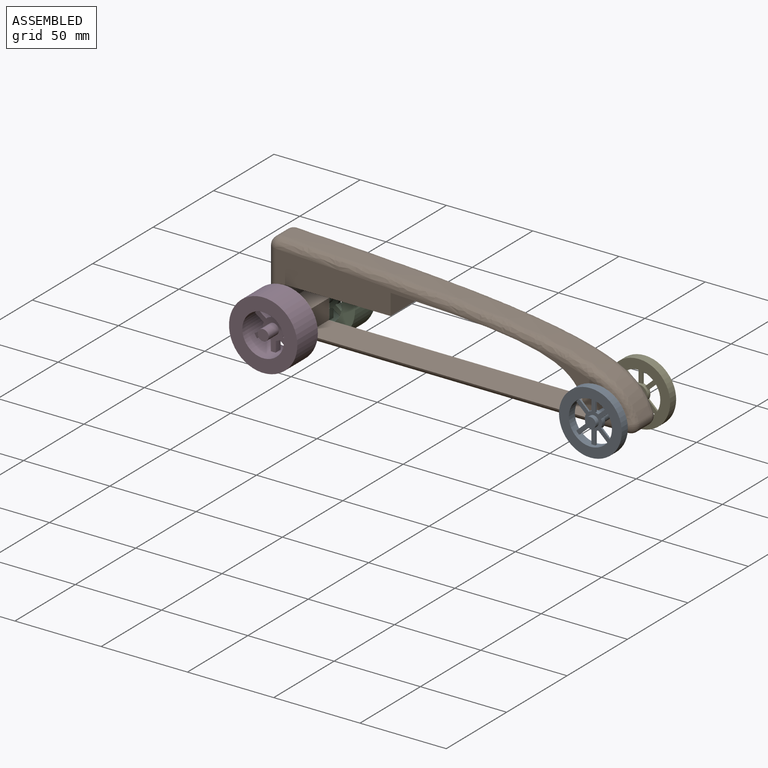
[diagram: assembled view]
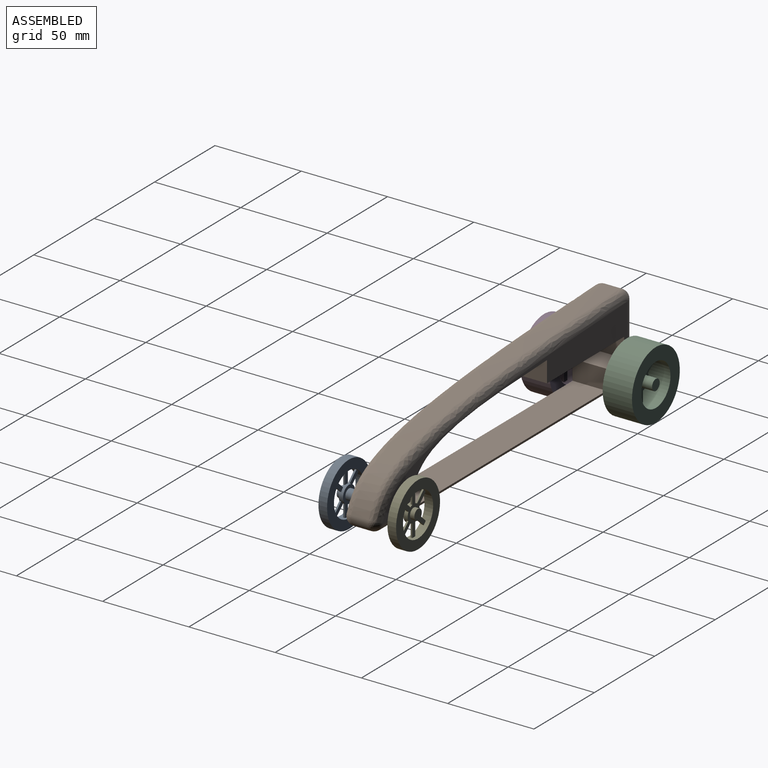
[diagram: assembled view, second angle]
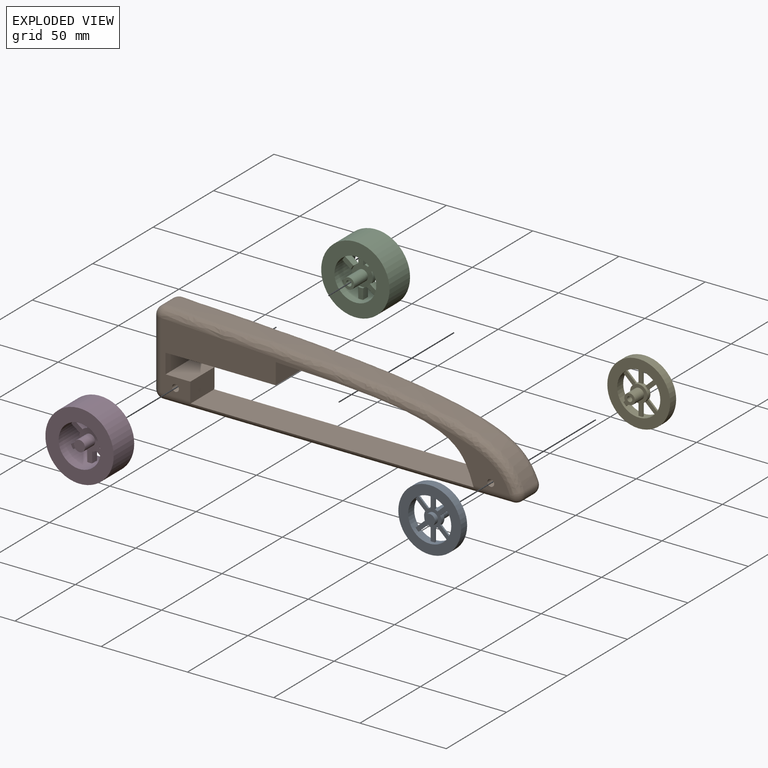
[diagram: exploded view]
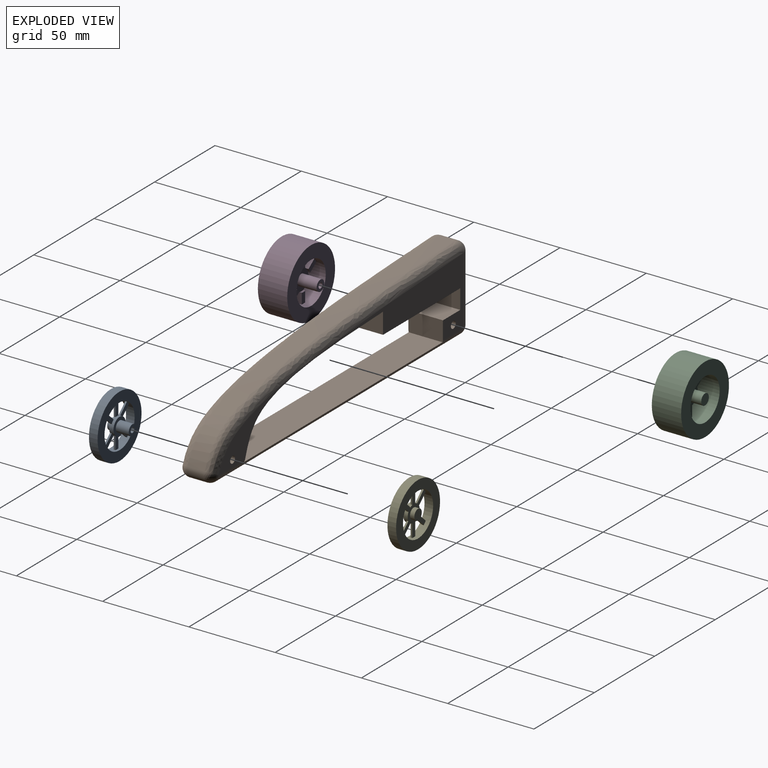
[diagram: exploded view, second angle]
ASSEMBLY  parts=5 mates=4
PART A: 31 faces, bbox 36.4x12.5x36.4 mm
  f0: cylinder r=3.1mm len=7.5mm, axis (0,1,0), area 146.1mm2, adj f2,f5
  f1: cylinder r=1.5mm len=10mm, axis (0,1,0), area 94.2mm2, adj f2,f3
  f2: plane 6.2x6.2mm, normal (0,1,0), area 23.1mm2, adj f0,f1
  f3: plane 3x3mm, normal (0,1,0), area 7.1mm2, adj f1
  f4: cylinder r=5mm len=10mm, axis (0,-1,0), area 64mm2, adj f5,f6,f9,f10,f11,f12,f13,f14
  f5: plane 10x10mm, normal (0,1,0), area 48.3mm2, adj f0,f4
  f6: plane 25.02x19.87mm, normal (0,-1,0), area 156.8mm2, adj f4,f8,f9,f10,f12,f13,f15,f16
  f7: plane 6.18x6.18mm, normal (0,-1,0), area 30mm2, adj f8
  f8: cylinder r=3.09mm len=6.18mm, axis (0,1,0), area 48.5mm2, adj f6,f7
  f9: plane 5.55x5.17mm, normal (0.68,0,-0.73), area 7.6mm2, adj f4,f6,f11,f27
  f10: plane 5.55x5.17mm, normal (-0.68,0,0.73), area 7.6mm2, adj f4,f6,f11,f27
  f11: plane 7.19x6.93mm, normal (0,1,0), area 18.1mm2, adj f4,f9,f10,f27
  f12: plane 7.59x1mm, normal (1,0,0), area 7.6mm2, adj f4,f6,f14,f27
  f13: plane 7.59x1mm, normal (-1,0,0), area 7.6mm2, adj f4,f6,f14,f27
  f14: plane 7.65x2.4mm, normal (0,1,0), area 18.1mm2, adj f4,f12,f13,f27
  f15: plane 5.55x5.17mm, normal (-0.68,0,-0.73), area 7.6mm2, adj f4,f6,f17,f27
  f16: plane 5.55x5.17mm, normal (0.68,0,0.73), area 7.6mm2, adj f4,f6,f17,f27
  f17: plane 7.19x6.93mm, normal (0,1,0), area 18.1mm2, adj f4,f15,f16,f27
  f18: plane 5.55x5.17mm, normal (-0.68,0,0.73), area 7.6mm2, adj f4,f6,f20,f27
  f19: plane 5.55x5.17mm, normal (0.68,0,-0.73), area 7.6mm2, adj f4,f6,f20,f27
  f20: plane 7.19x6.93mm, normal (0,1,0), area 18.1mm2, adj f4,f18,f19,f27
  f21: plane 7.59x1mm, normal (-1,0,0), area 7.6mm2, adj f4,f6,f23,f27
  f22: plane 7.59x1mm, normal (1,0,0), area 7.6mm2, adj f4,f6,f23,f27
  f23: plane 7.65x2.4mm, normal (0,1,0), area 18.1mm2, adj f4,f21,f22,f27
  f24: plane 5.55x5.17mm, normal (-0.68,0,-0.73), area 7.6mm2, adj f4,f6,f26,f27
  f25: plane 5.55x5.17mm, normal (0.68,0,0.73), area 7.6mm2, adj f4,f6,f26,f27
  f26: plane 7.19x6.93mm, normal (0,1,0), area 18.1mm2, adj f4,f24,f25,f27
  f27: cylinder r=12.5mm len=25mm, axis (0,1,0), area 378.3mm2, adj f6,f9,f10,f11,f12,f13,f14,f15
  f28: cylinder r=18.2mm len=36.4mm, axis (0,1,0), area 571.8mm2, adj f29,f30
  f29: plane 36.4x36.4mm, normal (0,-1,0), area 549.7mm2, adj f27,f28
  f30: plane 36.4x36.4mm, normal (0,1,0), area 549.7mm2, adj f27,f28
PART B: 32 faces, bbox 214.3x20x49.2 mm
  f0: plane 30x10mm, normal (-1,0,0), area 260.7mm2, adj f7,f27,f28,f31
  f1: plane 20x11.53mm, normal (1,0,0), area 230.5mm2, adj f2,f3,f13,f15,f19,f23
  f2: plane 202.59x40.37mm, normal (0,-1,0), area 1775.5mm2, adj f1,f4,f10,f11,f12,f14,f15,f16
  f3: plane 202.59x40.37mm, normal (0,1,0), area 1775.5mm2, adj f1,f4,f10,f11,f12,f14,f15,f16
  f4: plane 20x12.18mm, normal (1,0,0), area 243.5mm2, adj f2,f3,f12,f14
  f5: plane 10x8.96mm, normal (-1,0,0), area 50.4mm2, adj f7,f24,f27,f28
  f6: plane 202.58x10mm, normal (0,0,-1), area 2025.8mm2, adj f19,f21,f23,f31
  f7: cylinder r=5mm len=65mm, axis (-1,0,0), area 2042mm2, adj f0,f5,f8
  f8: plane 10x10mm, normal (-1,0,0), area 78.5mm2, adj f7
  f9: extruded ~207x42.06mm, area 2184.1mm2, adj f17,f18,f21,f24
  f10: cylinder r=2mm len=20mm, axis (0,-1,0), area 251.3mm2, adj f2,f3
  f11: cylinder r=2mm len=20mm, axis (0,-1,0), area 251.3mm2, adj f2,f3
  f12: extruded ~114.61x35.06mm, area 2570.7mm2, adj f2,f3,f4,f13,f19,f23
  f13: plane 164.15x19.6mm, normal (0,0,1), area 3217mm2, adj f1,f12,f19,f23
  f14: plane 63.89x20mm, normal (0,0,-1), area 1277.9mm2, adj f2,f3,f4,f16
  f15: plane 20x14.35mm, normal (0,0,1), area 287mm2, adj f1,f2,f3,f16
  f16: plane 20x11.35mm, normal (1,0,0), area 227mm2, adj f2,f3,f14,f15
  f17: bspline ~214.3x45.27mm, area 1699.1mm2, adj f2,f9,f20,f25
  f18: bspline ~214.3x45.27mm, area 1699.1mm2, adj f3,f9,f22,f26
  f19: cylinder r=5mm len=202.58mm, axis (-1,0,0), area 1357.6mm2, adj f1,f2,f6,f12,f13,f20,f29
  f20: sphere r=5mm, area 49mm2, adj f17,f19,f21
  f21: cylinder r=5mm len=10mm, axis (0,-1,0), area 98mm2, adj f6,f9,f20,f22
  f22: sphere r=5mm, area 49mm2, adj f18,f21,f23
  f23: cylinder r=5mm len=202.58mm, axis (1,0,0), area 1357.6mm2, adj f1,f3,f6,f12,f13,f22,f30
  f24: cylinder r=5mm len=10mm, axis (0,-1,0), area 80.6mm2, adj f5,f9,f25,f26
  f25: sphere r=5mm, area 40.3mm2, adj f17,f24,f27
  f26: sphere r=5mm, area 40.3mm2, adj f18,f24,f28
  f27: cylinder r=5mm len=38.96mm, axis (0,0,1), area 306mm2, adj f0,f2,f5,f25,f29
  f28: cylinder r=5mm len=38.96mm, axis (0,0,-1), area 306mm2, adj f0,f3,f5,f26,f30
  f29: sphere r=5mm, area 39.3mm2, adj f19,f27,f31
  f30: sphere r=5mm, area 39.3mm2, adj f23,f28,f31
  f31: cylinder r=5mm len=10mm, axis (0,-1,0), area 78.5mm2, adj f0,f6,f29,f30
PART C: 42 faces, bbox 39.6x22.4x39.6 mm
  f0: cylinder r=12.1mm len=24.2mm, axis (0,-1,0), area 1225mm2, adj f2,f3,f4,f5,f6,f7,f8,f9
  f1: cylinder r=19.8mm len=39.6mm, axis (0,-1,0), area 2114.9mm2, adj f2,f3
  f2: plane 39.6x39.6mm, normal (0,1,0), area 771.7mm2, adj f0,f1
  f3: plane 39.6x39.6mm, normal (0,-1,0), area 771.7mm2, adj f0,f1
  f4: plane 6.21x2.8mm, normal (0,-1,0), area 17mm2, adj f0,f15,f16,f17
  f5: plane 24.22x21.29mm, normal (0,1,0), area 186.3mm2, adj f0,f15,f16,f18,f19,f20,f22,f23
  f6: plane 6.21x2.8mm, normal (0,-1,0), area 17mm2, adj f0,f19,f20,f21
  f7: plane 7.08x5.81mm, normal (0,-1,0), area 17.6mm2, adj f0,f23,f24,f25
  f8: plane 6.48x6.25mm, normal (0,-1,0), area 17.6mm2, adj f0,f28,f29,f30
  f9: plane 6.48x5.97mm, normal (0,-1,0), area 17mm2, adj f0,f32,f33,f34
  f10: plane 6.85x5.92mm, normal (0,-1,0), area 17.5mm2, adj f0,f37,f38,f39
  f11: cylinder r=3.17mm len=11.2mm, axis (0,-1,0), area 223.1mm2, adj f13,f26
  f12: cylinder r=1.57mm len=13.9mm, axis (0,-1,0), area 137.1mm2, adj f13,f14
  f13: plane 6.34x6.34mm, normal (0,-1,0), area 23.8mm2, adj f11,f12
  f14: plane 3.14x3.14mm, normal (0,-1,0), area 7.7mm2, adj f12
  f15: plane 6.11x4mm, normal (1,0,0), area 24.4mm2, adj f0,f4,f5,f17,f27
  f16: plane 6.12x4mm, normal (-1,0,0), area 24.5mm2, adj f0,f4,f5,f17,f18
  f17: cylinder r=6.07mm len=2.8mm, axis (0,1,0), area 3.7mm2, adj f4,f15,f16,f26
  f18: cylinder r=6.07mm len=2.75mm, axis (0,1,0), area 8.6mm2, adj f5,f16,f26,f34
  f19: plane 6.12x4mm, normal (-1,0,0), area 24.5mm2, adj f0,f5,f6,f21,f35
  f20: plane 6.11x4mm, normal (1,0,0), area 24.4mm2, adj f0,f5,f6,f21,f22
  f21: cylinder r=6.07mm len=2.8mm, axis (0,1,0), area 3.7mm2, adj f6,f19,f20,f26
  f22: cylinder r=6.07mm len=2.7mm, axis (0,1,0), area 6.8mm2, adj f5,f20,f26,f38
  f23: plane 5.22x4mm, normal (-0.59,0,0.8), area 25.4mm2, adj f0,f5,f7,f24,f26,f27
  f24: cylinder r=5.88mm len=2.07mm, axis (0,1,0), area 3.7mm2, adj f7,f23,f25,f26
  f25: plane 5x4mm, normal (0.59,0,-0.8), area 24.4mm2, adj f0,f5,f7,f24,f26,f36
  f26: plane 12.14x12.14mm, normal (0,-1,0), area 82.6mm2, adj f11,f17,f18,f21,f22,f23,f24,f25
  f27: cylinder r=6.07mm len=2.7mm, axis (0,1,0), area 4.9mm2, adj f5,f15,f23,f26
  f28: cylinder r=5.88mm len=2.55mm, axis (0,1,0), area 3.7mm2, adj f8,f26,f29,f30
  f29: plane 5.22x4mm, normal (-0.59,0,0.8), area 25.4mm2, adj f0,f5,f8,f26,f28,f31
  f30: plane 5x4mm, normal (0.59,0,-0.8), area 24.4mm2, adj f0,f5,f8,f26,f28,f35
  f31: cylinder r=6.07mm len=3.38mm, axis (0,1,0), area 9.3mm2, adj f5,f26,f29,f32
  f32: plane 4.96x4mm, normal (-0.59,0,-0.8), area 24.7mm2, adj f0,f5,f9,f31,f33
  f33: cylinder r=6.07mm len=2.36mm, axis (0,1,0), area 3.7mm2, adj f9,f26,f32,f34
  f34: plane 4.88x4mm, normal (0.59,0,0.8), area 24.3mm2, adj f0,f5,f9,f18,f33
  f35: cylinder r=6.07mm len=3.19mm, axis (0,1,0), area 10.3mm2, adj f5,f19,f26,f30
  f36: cylinder r=6.07mm len=6.03mm, axis (0,1,0), area 17.1mm2, adj f5,f25,f26,f39
  f37: cylinder r=5.88mm len=2.14mm, axis (0,1,0), area 3.7mm2, adj f10,f26,f38,f39
  f38: plane 5.12x4mm, normal (-0.59,0,-0.8), area 24.9mm2, adj f0,f5,f10,f22,f26,f37
  f39: plane 5.04x4mm, normal (0.59,0,0.8), area 24.5mm2, adj f0,f5,f10,f26,f36,f37
  f40: plane 6.32x6.32mm, normal (0,1,0), area 31.4mm2, adj f41
  f41: cylinder r=3.16mm len=8.5mm, axis (0,-1,0), area 168.9mm2, adj f5,f40
PART D: 42 faces, bbox 39.6x22.4x39.6 mm
  f0: cylinder r=12.1mm len=24.2mm, axis (0,1,0), area 1225mm2, adj f2,f3,f4,f5,f6,f7,f8,f9
  f1: cylinder r=19.8mm len=39.6mm, axis (0,1,0), area 2114.9mm2, adj f2,f3
  f2: plane 39.6x39.6mm, normal (0,-1,0), area 771.7mm2, adj f0,f1
  f3: plane 39.6x39.6mm, normal (0,1,0), area 771.7mm2, adj f0,f1
  f4: plane 6.21x2.8mm, normal (0,1,0), area 17mm2, adj f0,f15,f16,f17
  f5: plane 24.22x21.29mm, normal (0,-1,0), area 186.2mm2, adj f0,f15,f16,f18,f19,f20,f22,f23
  f6: plane 6.21x2.8mm, normal (0,1,0), area 17mm2, adj f0,f19,f20,f21
  f7: plane 7.08x5.81mm, normal (0,1,0), area 17.6mm2, adj f0,f23,f24,f25
  f8: plane 6.48x6.25mm, normal (0,1,0), area 17.6mm2, adj f0,f28,f29,f30
  f9: plane 6.48x5.97mm, normal (0,1,0), area 17mm2, adj f0,f32,f33,f34
  f10: plane 6.85x5.92mm, normal (0,1,0), area 17.5mm2, adj f0,f37,f38,f39
  f11: cylinder r=3.17mm len=11.2mm, axis (0,1,0), area 223.1mm2, adj f13,f26
  f12: cylinder r=1.57mm len=13.9mm, axis (0,1,0), area 137.1mm2, adj f13,f14
  f13: plane 6.34x6.34mm, normal (0,1,0), area 23.8mm2, adj f11,f12
  f14: plane 3.14x3.14mm, normal (0,1,0), area 7.7mm2, adj f12
  f15: plane 6.11x4mm, normal (1,0,0), area 24.4mm2, adj f0,f4,f5,f17,f27
  f16: plane 6.12x4mm, normal (-1,0,0), area 24.5mm2, adj f0,f4,f5,f17,f18
  f17: cylinder r=6.07mm len=2.8mm, axis (0,-1,0), area 3.7mm2, adj f4,f15,f16,f26
  f18: cylinder r=6.07mm len=2.75mm, axis (0,-1,0), area 8.6mm2, adj f5,f16,f26,f34
  f19: plane 6.12x4mm, normal (-1,0,0), area 24.5mm2, adj f0,f5,f6,f21,f35
  f20: plane 6.11x4mm, normal (1,0,0), area 24.4mm2, adj f0,f5,f6,f21,f22
  f21: cylinder r=6.07mm len=2.8mm, axis (0,-1,0), area 3.7mm2, adj f6,f19,f20,f26
  f22: cylinder r=6.07mm len=2.7mm, axis (0,-1,0), area 6.8mm2, adj f5,f20,f26,f38
  f23: plane 5.22x4mm, normal (-0.59,0,0.8), area 25.4mm2, adj f0,f5,f7,f24,f26,f27
  f24: cylinder r=5.88mm len=2.07mm, axis (0,-1,0), area 3.7mm2, adj f7,f23,f25,f26
  f25: plane 5x4mm, normal (0.59,0,-0.8), area 24.4mm2, adj f0,f5,f7,f24,f26,f36
  f26: plane 12.14x12.14mm, normal (0,1,0), area 82.6mm2, adj f11,f17,f18,f21,f22,f23,f24,f25
  f27: cylinder r=6.07mm len=2.7mm, axis (0,-1,0), area 4.9mm2, adj f5,f15,f23,f26
  f28: cylinder r=5.88mm len=2.55mm, axis (0,-1,0), area 3.7mm2, adj f8,f26,f29,f30
  f29: plane 5.22x4mm, normal (-0.59,0,0.8), area 25.4mm2, adj f0,f5,f8,f26,f28,f31
  f30: plane 5x4mm, normal (0.59,0,-0.8), area 24.4mm2, adj f0,f5,f8,f26,f28,f35
  f31: cylinder r=6.07mm len=3.38mm, axis (0,-1,0), area 9.3mm2, adj f5,f26,f29,f32
  f32: plane 4.96x4mm, normal (-0.59,0,-0.8), area 24.7mm2, adj f0,f5,f9,f31,f33
  f33: cylinder r=6.07mm len=2.36mm, axis (0,-1,0), area 3.7mm2, adj f9,f26,f32,f34
  f34: plane 4.88x4mm, normal (0.59,0,0.8), area 24.3mm2, adj f0,f5,f9,f18,f33
  f35: cylinder r=6.07mm len=3.19mm, axis (0,-1,0), area 10.3mm2, adj f5,f19,f26,f30
  f36: cylinder r=6.07mm len=6.03mm, axis (0,-1,0), area 17.1mm2, adj f5,f25,f26,f39
  f37: cylinder r=5.88mm len=2.14mm, axis (0,-1,0), area 3.7mm2, adj f10,f26,f38,f39
  f38: plane 5.12x4mm, normal (-0.59,0,-0.8), area 24.9mm2, adj f0,f5,f10,f22,f26,f37
  f39: plane 5.04x4mm, normal (0.59,0,0.8), area 24.5mm2, adj f0,f5,f10,f26,f36,f37
  f40: plane 6.32x6.32mm, normal (0,-1,0), area 31.4mm2, adj f41
  f41: cylinder r=3.16mm len=8.5mm, axis (0,1,0), area 168.9mm2, adj f5,f40
PART E: 31 faces, bbox 36.4x12.5x36.4 mm
  f0: cylinder r=3.1mm len=7.5mm, axis (0,-1,0), area 146.1mm2, adj f2,f5
  f1: cylinder r=1.5mm len=10mm, axis (0,-1,0), area 94.2mm2, adj f2,f3
  f2: plane 6.2x6.2mm, normal (0,-1,0), area 23.1mm2, adj f0,f1
  f3: plane 3x3mm, normal (0,-1,0), area 7.1mm2, adj f1
  f4: cylinder r=5mm len=10mm, axis (0,1,0), area 64mm2, adj f5,f6,f9,f10,f11,f12,f13,f14
  f5: plane 10x10mm, normal (0,-1,0), area 48.3mm2, adj f0,f4
  f6: plane 25.02x19.87mm, normal (0,1,0), area 156.8mm2, adj f4,f8,f9,f10,f12,f13,f15,f16
  f7: plane 6.18x6.18mm, normal (0,1,0), area 30mm2, adj f8
  f8: cylinder r=3.09mm len=6.18mm, axis (0,-1,0), area 48.5mm2, adj f6,f7
  f9: plane 5.55x5.17mm, normal (0.68,0,-0.73), area 7.6mm2, adj f4,f6,f11,f27
  f10: plane 5.55x5.17mm, normal (-0.68,0,0.73), area 7.6mm2, adj f4,f6,f11,f27
  f11: plane 7.19x6.93mm, normal (0,-1,0), area 18.1mm2, adj f4,f9,f10,f27
  f12: plane 7.59x1mm, normal (1,0,0), area 7.6mm2, adj f4,f6,f14,f27
  f13: plane 7.59x1mm, normal (-1,0,0), area 7.6mm2, adj f4,f6,f14,f27
  f14: plane 7.65x2.4mm, normal (0,-1,0), area 18.1mm2, adj f4,f12,f13,f27
  f15: plane 5.55x5.17mm, normal (-0.68,0,-0.73), area 7.6mm2, adj f4,f6,f17,f27
  f16: plane 5.55x5.17mm, normal (0.68,0,0.73), area 7.6mm2, adj f4,f6,f17,f27
  f17: plane 7.19x6.93mm, normal (0,-1,0), area 18.1mm2, adj f4,f15,f16,f27
  f18: plane 5.55x5.17mm, normal (-0.68,0,0.73), area 7.6mm2, adj f4,f6,f20,f27
  f19: plane 5.55x5.17mm, normal (0.68,0,-0.73), area 7.6mm2, adj f4,f6,f20,f27
  f20: plane 7.19x6.93mm, normal (0,-1,0), area 18.1mm2, adj f4,f18,f19,f27
  f21: plane 7.59x1mm, normal (-1,0,0), area 7.6mm2, adj f4,f6,f23,f27
  f22: plane 7.59x1mm, normal (1,0,0), area 7.6mm2, adj f4,f6,f23,f27
  f23: plane 7.65x2.4mm, normal (0,-1,0), area 18.1mm2, adj f4,f21,f22,f27
  f24: plane 5.55x5.17mm, normal (-0.68,0,-0.73), area 7.6mm2, adj f4,f6,f26,f27
  f25: plane 5.55x5.17mm, normal (0.68,0,0.73), area 7.6mm2, adj f4,f6,f26,f27
  f26: plane 7.19x6.93mm, normal (0,-1,0), area 18.1mm2, adj f4,f24,f25,f27
  f27: cylinder r=12.5mm len=25mm, axis (0,-1,0), area 378.3mm2, adj f6,f9,f10,f11,f12,f13,f14,f15
  f28: cylinder r=18.2mm len=36.4mm, axis (0,-1,0), area 571.8mm2, adj f29,f30
  f29: plane 36.4x36.4mm, normal (0,1,0), area 549.7mm2, adj f27,f28
  f30: plane 36.4x36.4mm, normal (0,-1,0), area 549.7mm2, adj f27,f28
PLACE A t=(173.84,12,-93.27)mm
PLACE B t=(61.8,32,-69.58)mm
PLACE C t=(5.62,-11.9,-86.56)mm
PLACE D t=(5.62,7.3,-86.56)mm
PLACE E t=(173.84,7,-93.27)mm
MATE revolute E.f0 <-> B.f11  axis (0,-1,0) through (173.84,32,-93.27)mm
MATE revolute C.f0 <-> B.f10  axis (0,-1,0) through (-8.87,32,-92.41)mm
MATE revolute A.f0 <-> B.f11  axis (0,1,0) through (173.84,12,-93.27)mm
MATE revolute D.f0 <-> B.f10  axis (0,1,0) through (-8.87,12,-92.41)mm
